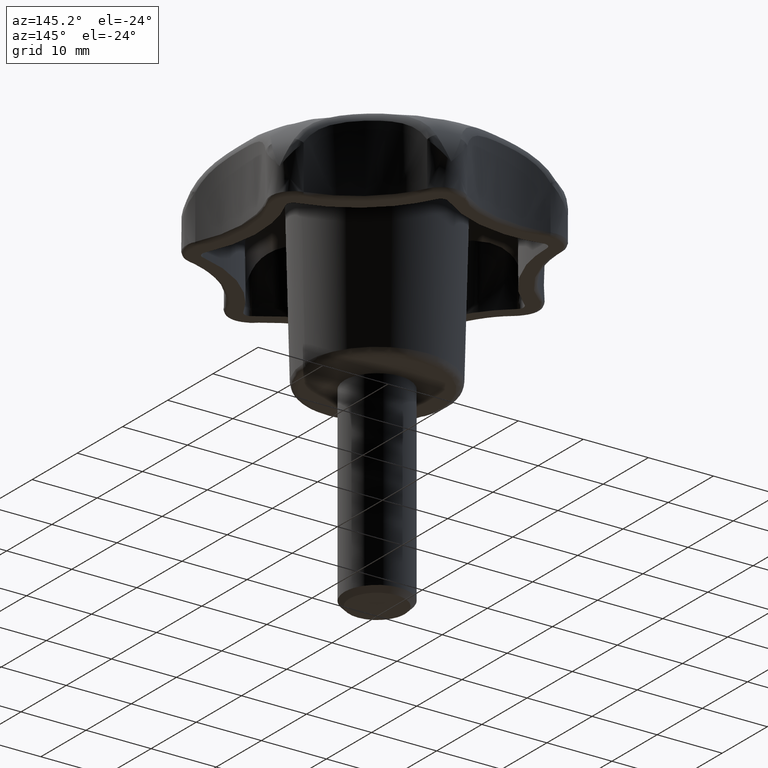
[diagram: clean part render]
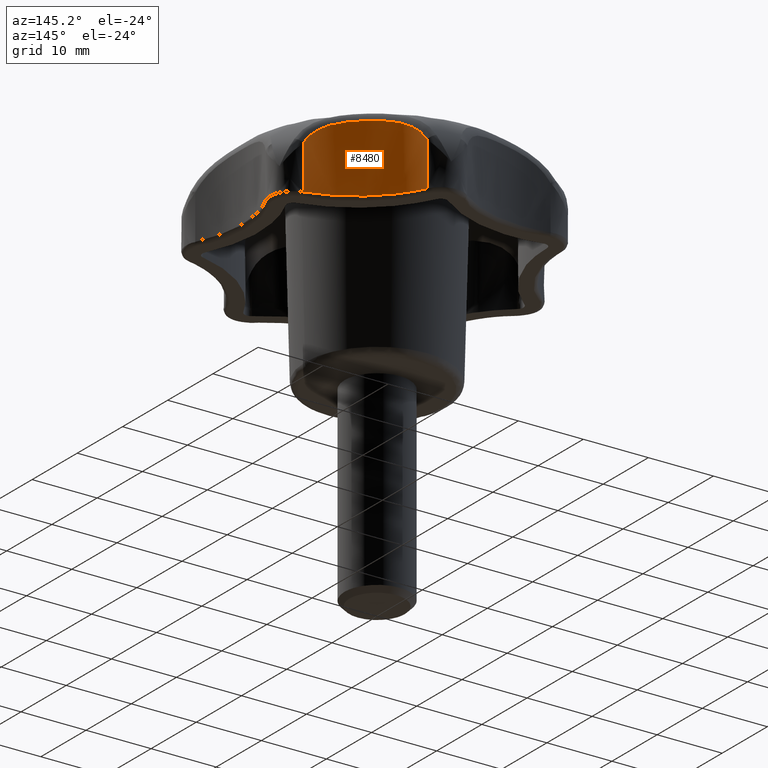
[diagram: same view with one face highlighted and labeled with its STEP entity id]
A machine part, auxiliary view. The second image highlights one B-rep face of the part: STEP entity #8480.
In plain terms, the highlighted face is a freeform B-spline surface patch.
Its self-contained STEP definition (entity closure, byte-faithful):
#1781=CARTESIAN_POINT('',(7.937591030085770,22.479543102636299,17.500000000000000));
#1782=VERTEX_POINT('',#1781);
#2756=CARTESIAN_POINT('',(7.937591030085770,22.479543102636299,24.301413872546149));
#2757=VERTEX_POINT('',#2756);
#2758=CARTESIAN_POINT('',(7.937591030085770,22.479543102636299,24.301413872546149));
#2759=CARTESIAN_POINT('',(7.937591030085770,22.479543102636299,17.500000000000000));
#2760=QUASI_UNIFORM_CURVE('',1,(#2758,#2759),.UNSPECIFIED.,.F.,.U.);
#2761=EDGE_CURVE('',#2757,#1782,#2760,.T.);
#3539=CARTESIAN_POINT('',(20.149654145031700,12.740748590713901,24.301412729540001));
#3540=VERTEX_POINT('',#3539);
#3550=CARTESIAN_POINT('',(7.937591030085770,22.479543102636299,24.301413872546149));
#3551=CARTESIAN_POINT('',(8.022979927651850,22.302232563330598,24.639416380088338));
#3552=CARTESIAN_POINT('',(8.123995134207721,22.099776066489390,24.954494820937970));
#3553=CARTESIAN_POINT('',(8.272849332667013,21.818302265102080,25.320690588349191));
#3554=CARTESIAN_POINT('',(8.303756836148553,21.760580434961948,25.392539718988839));
#3555=CARTESIAN_POINT('',(8.367950719582979,21.642334604783329,25.533456173861381));
#3556=CARTESIAN_POINT('',(8.401321784514357,21.581660247713462,25.602682720195808));
#3557=CARTESIAN_POINT('',(8.504399124026202,21.396891345463480,25.804685991101380));
#3558=CARTESIAN_POINT('',(8.577069862006955,21.270031200079170,25.931897706211629));
#3559=CARTESIAN_POINT('',(8.807360626332228,20.879868592828970,26.292618802471878));
#3560=CARTESIAN_POINT('',(8.977241807577270,20.607011730794031,26.505261018179091));
#3561=CARTESIAN_POINT('',(9.211822380461952,20.254128467132329,26.739928952812932));
#3562=CARTESIAN_POINT('',(9.259851411596635,20.182958756581812,26.785301718678451));
#3563=CARTESIAN_POINT('',(9.358185078991186,20.039528501415688,26.873003852010228));
#3564=CARTESIAN_POINT('',(9.408525990212079,19.967222349109839,26.915350031814231));
#3565=CARTESIAN_POINT('',(9.561667826348069,19.750712527975359,27.036919454489400));
#3566=CARTESIAN_POINT('',(9.667011074400929,19.606293131086350,27.111080117941050));
#3567=CARTESIAN_POINT('',(9.992749944730509,19.173690613130191,27.315250323116292));
#3568=CARTESIAN_POINT('',(10.222845393097799,18.886192391947390,27.427041376652902));
#3569=CARTESIAN_POINT('',(10.587413895669950,18.459201984145970,27.565564137420271));
#3570=CARTESIAN_POINT('',(10.712176493612970,18.317573274815430,27.606852756309031));
#3571=CARTESIAN_POINT('',(10.968218146871340,18.036118378903758,27.680596894086399));
#3572=CARTESIAN_POINT('',(11.099866013234600,17.895927034268521,27.713114131634018));
#3573=CARTESIAN_POINT('',(11.500347328841499,17.482966015187930,27.797730019127300));
#3574=CARTESIAN_POINT('',(11.775544564520031,17.216782869412420,27.837403526794610));
#3575=CARTESIAN_POINT('',(12.342116951377500,16.702641288424221,27.889672325297351));
#3576=CARTESIAN_POINT('',(12.633491696225059,16.454681747052760,27.902252650872299));
#3577=CARTESIAN_POINT('',(13.232439310810131,15.977089245140480,27.902209918885859));
#3578=CARTESIAN_POINT('',(13.540010994960710,15.747455125049379,27.889593093177350));
#3579=CARTESIAN_POINT('',(14.013745721130130,15.416945954574951,27.849923994125191));
#3580=CARTESIAN_POINT('',(14.173807524270041,15.309045983009220,27.833198364506210));
#3581=CARTESIAN_POINT('',(14.497781681800420,15.098174155979310,27.792054632809219));
#3582=CARTESIAN_POINT('',(14.660494507427360,14.995980040077040,27.767788914368630));
#3583=CARTESIAN_POINT('',(15.150463017687381,14.698951832394339,27.682975577621772));
#3584=CARTESIAN_POINT('',(15.479572909656669,14.513663900296040,27.610515827600821));
#3585=CARTESIAN_POINT('',(16.140324878727299,14.167927576882590,27.426214909811389));
#3586=CARTESIAN_POINT('',(16.471977017902780,14.007485442021119,27.314398294307161));
#3587=CARTESIAN_POINT('',(16.968899867132158,13.785134910807280,27.108780174772221));
#3588=CARTESIAN_POINT('',(17.135000185168749,13.713856957478709,27.033574532816981));
#3589=CARTESIAN_POINT('',(17.461375372372089,13.579390412366781,26.871320955515468));
#3590=CARTESIAN_POINT('',(17.622112457883290,13.515974996782280,26.784126002564300));
#3591=CARTESIAN_POINT('',(18.095925510391378,13.336535961588250,26.503067829198368));
#3592=CARTESIAN_POINT('',(18.400658566417960,13.231313915183700,26.289821438140379));
#3593=CARTESIAN_POINT('',(18.763562769324508,13.115695644824640,25.985721774093239));
#3594=CARTESIAN_POINT('',(18.835295601639981,13.093353208079920,25.922949568896470));
#3595=CARTESIAN_POINT('',(18.975405883992160,13.050632953641250,25.794836471314639));
#3596=CARTESIAN_POINT('',(19.043966828938849,13.030195454458809,25.729348382100550));
#3597=CARTESIAN_POINT('',(19.245119639780761,12.971475188064360,25.528589516040679));
#3598=CARTESIAN_POINT('',(19.373185775821391,12.935780696374851,25.389028544187081));
#3599=CARTESIAN_POINT('',(19.738767084907689,12.837795489649750,24.953041069409860));
#3600=CARTESIAN_POINT('',(19.957784884234119,12.784541497930279,24.639421965009142));
#3601=CARTESIAN_POINT('',(20.149654145031750,12.740748590713840,24.301412870660851));
#3602=B_SPLINE_CURVE_WITH_KNOTS('',3,(#3550,#3551,#3552,#3553,#3554,#3555,#3556,#3557,#3558,#3559,#3560,#3561,#3562,#3563,#3564,#3565,#3566,#3567,#3568,#3569,#3570,#3571,#3572,#3573,#3574,#3575,#3576,#3577,#3578,#3579,#3580,#3581,#3582,#3583,#3584,#3585,#3586,#3587,#3588,#3589,#3590,#3591,#3592,#3593,#3594,#3595,#3596,#3597,#3598,#3599,#3600,#3601),.UNSPECIFIED.,.F.,.U.,(4,2,2,2,2,2,2,2,2,2,2,2,2,2,2,2,2,2,2,2,2,2,2,2,2,4),(0.0,0.062500000000000,0.078125000000000,0.093750000000000,0.125000000000000,0.187499999999999,0.203124999999999,0.218749999999998,0.249999999999998,0.312499999999999,0.343749999999999,0.374999999999999,0.437499999999999,0.499999999999999,0.562499999999999,0.593749999999999,0.624999999999999,0.687499999999999,0.749999999999999,0.781249999999999,0.812499999999998,0.874999999999997,0.890624999999997,0.906249999999997,0.937499999999998,1.0),.UNSPECIFIED.);
#3603=EDGE_CURVE('',#2757,#3540,#3602,.T.);
#8390=CARTESIAN_POINT('',(20.149654145031700,12.740748590713901,17.500000000000000));
#8391=VERTEX_POINT('',#8390);
#8439=CARTESIAN_POINT('',(20.149654145031700,12.740748590713901,17.500000000000000));
#8440=CARTESIAN_POINT('',(19.165152049909292,12.965374785912751,17.499999999999979));
#8441=CARTESIAN_POINT('',(17.716918307167688,13.427098486946930,17.500000000000028));
#8442=CARTESIAN_POINT('',(15.539845370958570,14.438174544418271,17.499999999999979));
#8443=CARTESIAN_POINT('',(13.454301046816459,15.718083287501541,17.500000000000000));
#8444=CARTESIAN_POINT('',(11.407483991656420,17.483744865555689,17.500000000000011));
#8445=CARTESIAN_POINT('',(9.460328311460799,19.757141293819309,17.500000000000050));
#8446=CARTESIAN_POINT('',(8.448612019650220,21.418035849738860,17.499999999999901));
#8447=CARTESIAN_POINT('',(7.937591030085770,22.479543102636299,17.500000000000000));
#8448=B_SPLINE_CURVE_WITH_KNOTS('',3,(#8439,#8440,#8441,#8442,#8443,#8444,#8445,#8446,#8447),.UNSPECIFIED.,.F.,.U.,(4,1,1,1,1,1,4),(9.793514E-009,3.029395607649823,4.544100690685035,7.194825859347045,10.350441446646171,12.622498175660690,16.156794979745449),.UNSPECIFIED.);
#8449=EDGE_CURVE('',#8391,#1782,#8448,.T.);
#8456=CARTESIAN_POINT('',(7.665896750503901,23.070832593262150,28.162287094843229));
#8457=CARTESIAN_POINT('',(7.665896750503901,23.070832593262150,17.233442822628920));
#8458=CARTESIAN_POINT('',(11.502762580869387,14.306469080827707,28.162287094843233));
#8459=CARTESIAN_POINT('',(11.502762580869387,14.306469080827707,17.233442822628923));
#8460=CARTESIAN_POINT('',(20.913798479559251,12.583677598410429,28.162287094843229));
#8461=CARTESIAN_POINT('',(20.913798479559251,12.583677598410429,17.233442822628923));
#8469=(BOUNDED_SURFACE()B_SPLINE_SURFACE(1,2,((#8456,#8458,#8460),(#8457,#8459,#8461)),.UNSPECIFIED.,.F.,.F.,.U.)B_SPLINE_SURFACE_WITH_KNOTS((2,2),(3,3),(0.0,10.928844272214310),(0.0,17.945983643213332),.UNSPECIFIED.)GEOMETRIC_REPRESENTATION_ITEM()RATIONAL_B_SPLINE_SURFACE(((1.0,0.879150757217873,0.991265390142281),(1.0,0.879150757217873,0.991265390142281)))REPRESENTATION_ITEM('')SURFACE());
#8470=CARTESIAN_POINT('',(20.149654145031700,12.740748590713901,24.301412729540001));
#8471=CARTESIAN_POINT('',(20.149654145031700,12.740748590713901,17.500000000000000));
#8472=QUASI_UNIFORM_CURVE('',1,(#8470,#8471),.UNSPECIFIED.,.F.,.U.);
#8473=EDGE_CURVE('',#3540,#8391,#8472,.T.);
#8474=ORIENTED_EDGE('',*,*,#8473,.T.);
#8475=ORIENTED_EDGE('',*,*,#8449,.T.);
#8476=ORIENTED_EDGE('',*,*,#2761,.F.);
#8477=ORIENTED_EDGE('',*,*,#3603,.T.);
#8478=EDGE_LOOP('',(#8474,#8475,#8476,#8477));
#8479=FACE_OUTER_BOUND('',#8478,.T.);
#8480=ADVANCED_FACE('',(#8479),#8469,.F.);